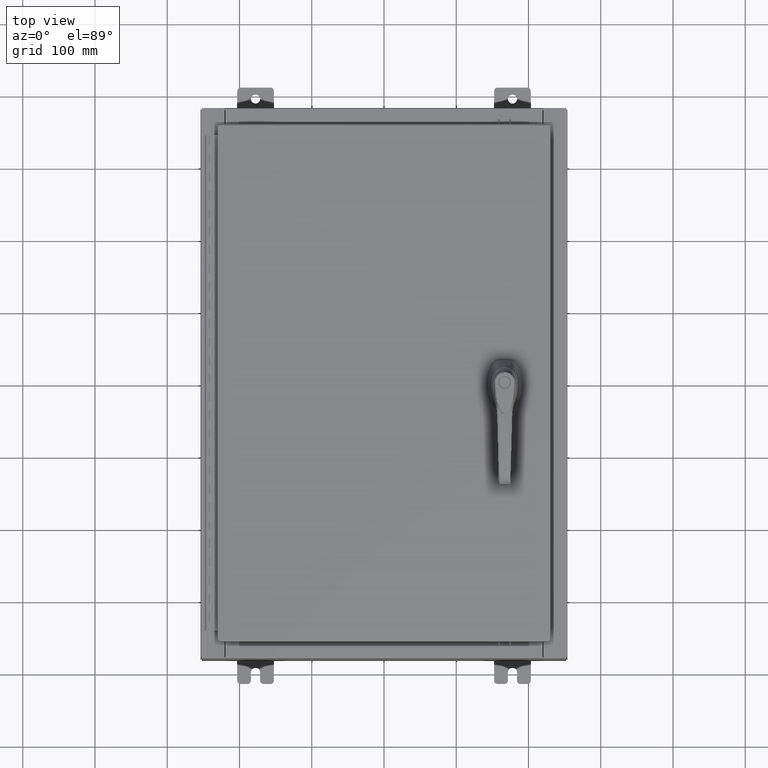
[diagram: clean part render]
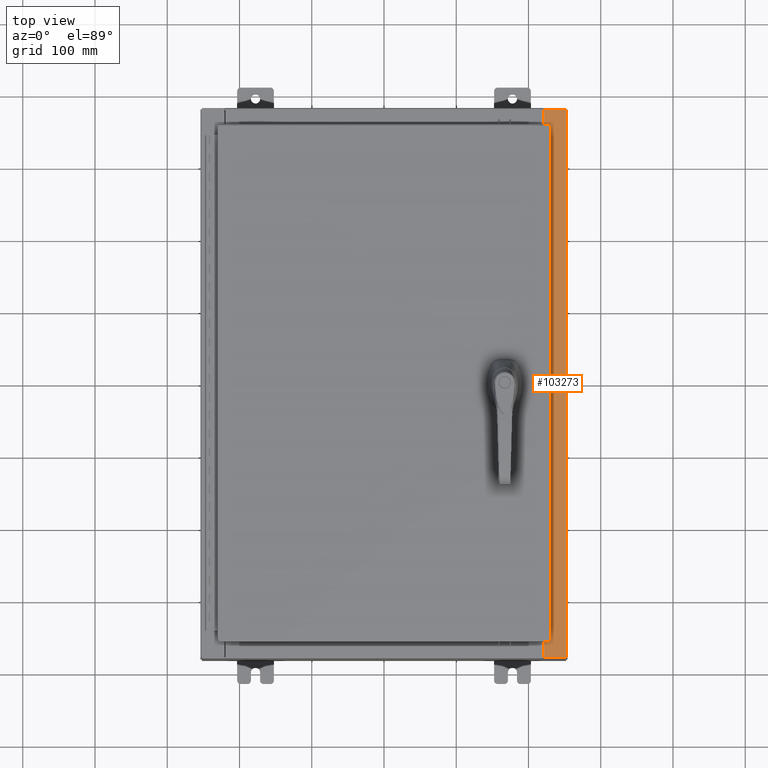
[diagram: same view with one face highlighted and labeled with its STEP entity id]
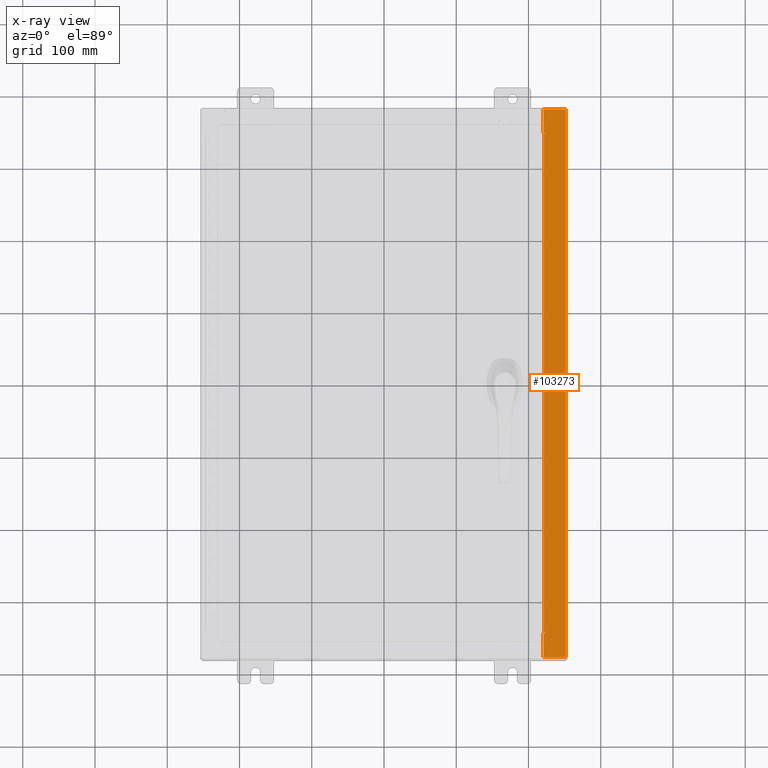
[diagram: x-ray of the same camera — body ghosted, the highlighted face saturated]
A machine part, top view. The second image highlights one B-rep face of the part: STEP entity #103273.
The next image is the same camera in x-ray: the body ghosted, the highlighted face saturated — about 0% of this face is hidden behind the body in this view.
In plain terms, the highlighted planar face has unit normal (-0, -0, -1).
Its self-contained STEP definition (entity closure, byte-faithful):
#197 = DIRECTION ( 'NONE',  ( 0.0000000000000000000, -1.000000000000000000, 3.660694248911932200E-017 ) ) ;
#1908 = CARTESIAN_POINT ( 'NONE',  ( 8.712700000000030100, -13.59375000000000000, 7.925300000000008900 ) ) ;
#3459 = LINE ( 'NONE', #19202, #72831 ) ;
#5084 = VERTEX_POINT ( 'NONE', #61620 ) ;
#7138 = AXIS2_PLACEMENT_3D ( 'NONE', #101978, #47758, #111056 ) ;
#9968 = LINE ( 'NONE', #57002, #79355 ) ;
#10146 = LINE ( 'NONE', #104845, #79527 ) ;
#13055 = CARTESIAN_POINT ( 'NONE',  ( 8.699700000000028400, -13.63109999999999800, 7.925300000000008900 ) ) ;
#15672 = ORIENTED_EDGE ( 'NONE', *, *, #82297, .T. ) ;
#17875 = DIRECTION ( 'NONE',  ( 1.000000000000000000, 0.0000000000000000000, 0.0000000000000000000 ) ) ;
#19202 = CARTESIAN_POINT ( 'NONE',  ( 5.679009539018278900E-014, 14.92530000000000500, 7.925300000000069300 ) ) ;
#19829 = CARTESIAN_POINT ( 'NONE',  ( 8.699700000000028400, 13.63110000000000700, 7.925300000000008900 ) ) ;
#22183 = LINE ( 'NONE', #63499, #115563 ) ;
#22492 = CARTESIAN_POINT ( 'NONE',  ( 8.712700000000030100, 13.59375000000000900, 7.925300000000008900 ) ) ;
#23553 = CARTESIAN_POINT ( 'NONE',  ( 8.750050000000030100, 13.63110000000000700, 7.925300000000008900 ) ) ;
#23961 = CARTESIAN_POINT ( 'NONE',  ( 8.699700000000028400, 14.92530000000000700, 7.925300000000007100 ) ) ;
#25556 = VERTEX_POINT ( 'NONE', #50237 ) ;
#25784 = ORIENTED_EDGE ( 'NONE', *, *, #53390, .F. ) ;
#26136 = CARTESIAN_POINT ( 'NONE',  ( 8.750050000000030100, 13.63110000000000700, 7.925300000000008900 ) ) ;
#27830 = VERTEX_POINT ( 'NONE', #49286 ) ;
#29765 = CARTESIAN_POINT ( 'NONE',  ( 8.750050000000030100, -13.63109999999999800, 7.925300000000008900 ) ) ;
#31604 = DIRECTION ( 'NONE',  ( 1.000000000000000000, 0.0000000000000000000, 0.0000000000000000000 ) ) ;
#32326 = VECTOR ( 'NONE', #50024, 39.37007874015748100 ) ;
#32629 = VECTOR ( 'NONE', #42622, 39.37007874015748100 ) ;
#32762 = CARTESIAN_POINT ( 'NONE',  ( 8.750050000000030100, -13.59375000000000000, 7.925300000000008900 ) ) ;
#33774 = VERTEX_POINT ( 'NONE', #34761 ) ;
#34761 = CARTESIAN_POINT ( 'NONE',  ( 9.912300000000028500, -14.92529999999999800, 7.925300000000000900 ) ) ;
#34796 = PLANE ( 'NONE',  #81252 ) ;
#36621 = CARTESIAN_POINT ( 'NONE',  ( 8.712700000000030100, 13.59375000000000900, 7.925300000000008900 ) ) ;
#36761 = ORIENTED_EDGE ( 'NONE', *, *, #58582, .F. ) ;
#37064 = EDGE_CURVE ( 'NONE', #5084, #27830, #65387, .T. ) ;
#38512 = EDGE_CURVE ( 'NONE', #93030, #33774, #9968, .T. ) ;
#38608 = CIRCLE ( 'NONE', #7138, 0.01867499999999949400 ) ;
#38674 = ORIENTED_EDGE ( 'NONE', *, *, #102968, .F. ) ;
#39029 = EDGE_CURVE ( 'NONE', #25556, #33774, #104772, .T. ) ;
#40431 = ORIENTED_EDGE ( 'NONE', *, *, #96341, .F. ) ;
#41339 = VECTOR ( 'NONE', #41852, 39.37007874015748100 ) ;
#41583 = DIRECTION ( 'NONE',  ( 0.0000000000000000000, -1.000000000000000000, 3.660694248911932200E-017 ) ) ;
#41852 = DIRECTION ( 'NONE',  ( -1.000000000000000000, 0.0000000000000000000, 0.0000000000000000000 ) ) ;
#42622 = DIRECTION ( 'NONE',  ( 1.000000000000000000, 1.783190596386594600E-015, -7.132762385546378400E-015 ) ) ;
#42710 = CIRCLE ( 'NONE', #107948, 0.01867499999999949400 ) ;
#43032 = EDGE_CURVE ( 'NONE', #60521, #86816, #22183, .T. ) ;
#44173 = ORIENTED_EDGE ( 'NONE', *, *, #39029, .T. ) ;
#47076 = EDGE_LOOP ( 'NONE', ( #38674, #78832, #44173, #79176, #15672, #64236, #36761, #97768, #55912, #40431, #104881, #25784 ) ) ;
#47758 = DIRECTION ( 'NONE',  ( 7.132762385546378400E-015, 3.660694248911932200E-017, 1.000000000000000000 ) ) ;
#49074 = DIRECTION ( 'NONE',  ( 7.132762385546378400E-015, 3.660694248911932200E-017, 1.000000000000000000 ) ) ;
#49286 = CARTESIAN_POINT ( 'NONE',  ( 8.712700000000030100, -13.59375000000000000, 7.925300000000008900 ) ) ;
#50024 = DIRECTION ( 'NONE',  ( -1.000000000000000000, 0.0000000000000000000, 0.0000000000000000000 ) ) ;
#50237 = CARTESIAN_POINT ( 'NONE',  ( 8.699700000000028400, -14.92529999999999800, 7.925300000000008900 ) ) ;
#51589 = LINE ( 'NONE', #1908, #94042 ) ;
#52970 = DIRECTION ( 'NONE',  ( -1.000000000000000000, 0.0000000000000000000, 7.132762385546378400E-015 ) ) ;
#53307 = VERTEX_POINT ( 'NONE', #13055 ) ;
#53390 = EDGE_CURVE ( 'NONE', #116247, #5084, #38608, .T. ) ;
#53869 = CARTESIAN_POINT ( 'NONE',  ( 8.699700000000028400, -13.63109999999999800, 7.925300000000008900 ) ) ;
#55912 = ORIENTED_EDGE ( 'NONE', *, *, #75925, .F. ) ;
#56369 = DIRECTION ( 'NONE',  ( -1.000000000000000000, 4.379057701015054300E-047, 7.132762385546378400E-015 ) ) ;
#57002 = CARTESIAN_POINT ( 'NONE',  ( 9.912300000000028500, -14.92529999999999800, 7.925300000000000900 ) ) ;
#58582 = EDGE_CURVE ( 'NONE', #79927, #86816, #104466, .T. ) ;
#60521 = VERTEX_POINT ( 'NONE', #23961 ) ;
#61620 = CARTESIAN_POINT ( 'NONE',  ( 8.750050000000030100, -13.59375000000000000, 7.925300000000008900 ) ) ;
#63499 = CARTESIAN_POINT ( 'NONE',  ( 8.699700000000028400, 2.901210013090176800E-016, 7.925300000000008900 ) ) ;
#64236 = ORIENTED_EDGE ( 'NONE', *, *, #43032, .T. ) ;
#65387 = LINE ( 'NONE', #32762, #41339 ) ;
#66109 = DIRECTION ( 'NONE',  ( -0.0000000000000000000, -1.000000000000000000, 3.660694248911932200E-017 ) ) ;
#69497 = EDGE_CURVE ( 'NONE', #99589, #79927, #42710, .T. ) ;
#72831 = VECTOR ( 'NONE', #56369, 39.37007874015748100 ) ;
#75925 = EDGE_CURVE ( 'NONE', #102413, #99589, #105584, .T. ) ;
#78832 = ORIENTED_EDGE ( 'NONE', *, *, #85096, .T. ) ;
#79176 = ORIENTED_EDGE ( 'NONE', *, *, #38512, .F. ) ;
#79355 = VECTOR ( 'NONE', #66109, 39.37007874015748100 ) ;
#79527 = VECTOR ( 'NONE', #41583, 39.37007874015748100 ) ;
#79927 = VERTEX_POINT ( 'NONE', #26136 ) ;
#80965 = CARTESIAN_POINT ( 'NONE',  ( 9.912300000000028500, 14.92530000000000700, 7.925300000000000000 ) ) ;
#81252 = AXIS2_PLACEMENT_3D ( 'NONE', #98065, #107164, #52970 ) ;
#81504 = VECTOR ( 'NONE', #31604, 39.37007874015748100 ) ;
#82297 = EDGE_CURVE ( 'NONE', #93030, #60521, #3459, .T. ) ;
#83414 = DIRECTION ( 'NONE',  ( -0.0000000000000000000, 1.000000000000000000, -0.0000000000000000000 ) ) ;
#85096 = EDGE_CURVE ( 'NONE', #53307, #25556, #10146, .T. ) ;
#86816 = VERTEX_POINT ( 'NONE', #19829 ) ;
#93030 = VERTEX_POINT ( 'NONE', #80965 ) ;
#93135 = FACE_OUTER_BOUND ( 'NONE', #47076, .T. ) ;
#94042 = VECTOR ( 'NONE', #83414, 39.37007874015748100 ) ;
#96341 = EDGE_CURVE ( 'NONE', #27830, #102413, #51589, .T. ) ;
#96801 = CARTESIAN_POINT ( 'NONE',  ( 8.340474999843167500E-014, -14.92530000000001400, 7.925300000000071100 ) ) ;
#97768 = ORIENTED_EDGE ( 'NONE', *, *, #69497, .F. ) ;
#98065 = CARTESIAN_POINT ( 'NONE',  ( 5.679009539018279500E-014, 2.901210013090199500E-016, 7.925300000000071100 ) ) ;
#99589 = VERTEX_POINT ( 'NONE', #114006 ) ;
#101978 = CARTESIAN_POINT ( 'NONE',  ( 8.750050000000030100, -13.61242500000000000, 7.925300000000008900 ) ) ;
#102413 = VERTEX_POINT ( 'NONE', #36621 ) ;
#102968 = EDGE_CURVE ( 'NONE', #53307, #116247, #113029, .T. ) ;
#103263 = CARTESIAN_POINT ( 'NONE',  ( 8.750050000000030100, 13.61242500000000900, 7.925300000000008900 ) ) ;
#103273 = ADVANCED_FACE ( 'NONE', ( #93135 ), #34796, .F. ) ;
#104466 = LINE ( 'NONE', #23553, #32326 ) ;
#104509 = VECTOR ( 'NONE', #17875, 39.37007874015748100 ) ;
#104772 = LINE ( 'NONE', #96801, #32629 ) ;
#104845 = CARTESIAN_POINT ( 'NONE',  ( 8.699700000000028400, 2.901210013090176800E-016, 7.925300000000008900 ) ) ;
#104881 = ORIENTED_EDGE ( 'NONE', *, *, #37064, .F. ) ;
#105584 = LINE ( 'NONE', #22492, #81504 ) ;
#107164 = DIRECTION ( 'NONE',  ( -7.132762385546378400E-015, -3.660694248911932200E-017, -1.000000000000000000 ) ) ;
#107948 = AXIS2_PLACEMENT_3D ( 'NONE', #103263, #49074, #112367 ) ;
#111056 = DIRECTION ( 'NONE',  ( 1.000000000000000000, 0.0000000000000000000, 0.0000000000000000000 ) ) ;
#112367 = DIRECTION ( 'NONE',  ( 1.000000000000000000, 0.0000000000000000000, 0.0000000000000000000 ) ) ;
#113029 = LINE ( 'NONE', #53869, #104509 ) ;
#114006 = CARTESIAN_POINT ( 'NONE',  ( 8.750050000000030100, 13.59375000000000900, 7.925300000000007100 ) ) ;
#115563 = VECTOR ( 'NONE', #197, 39.37007874015748100 ) ;
#116247 = VERTEX_POINT ( 'NONE', #29765 ) ;